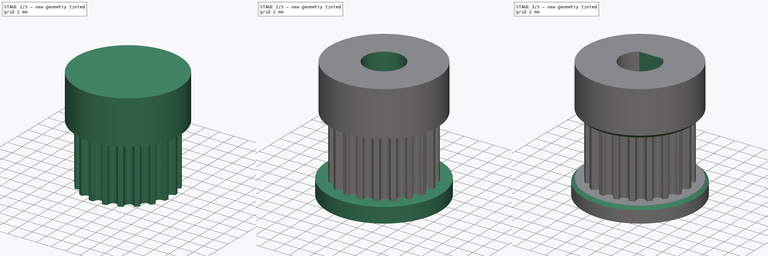
[diagram: build sequence overview — one tinted view per stage of 3, left to right]
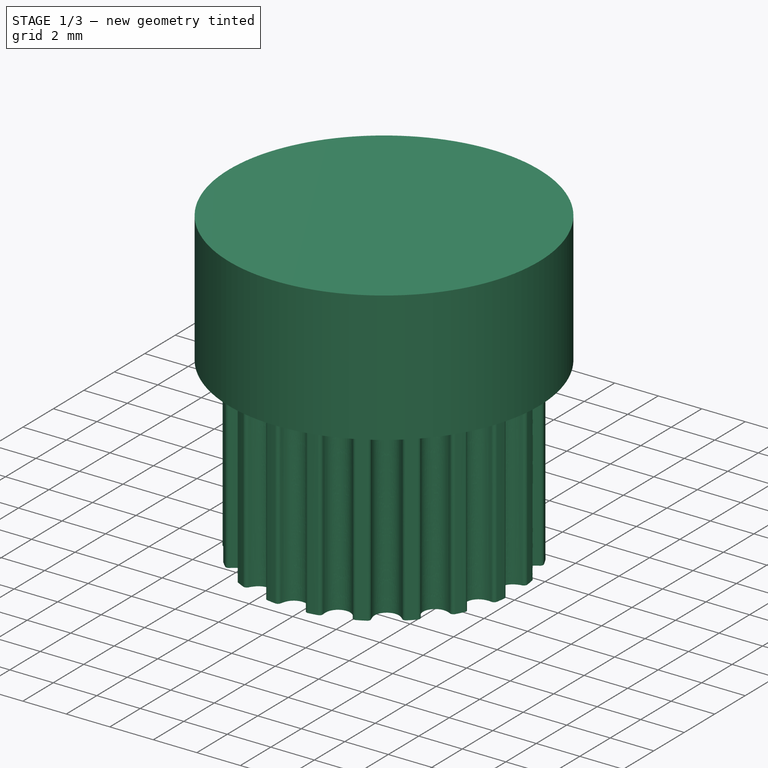
[diagram: stage 1 of 3 — iso view after this stage's code; geometry added in this stage tinted green]
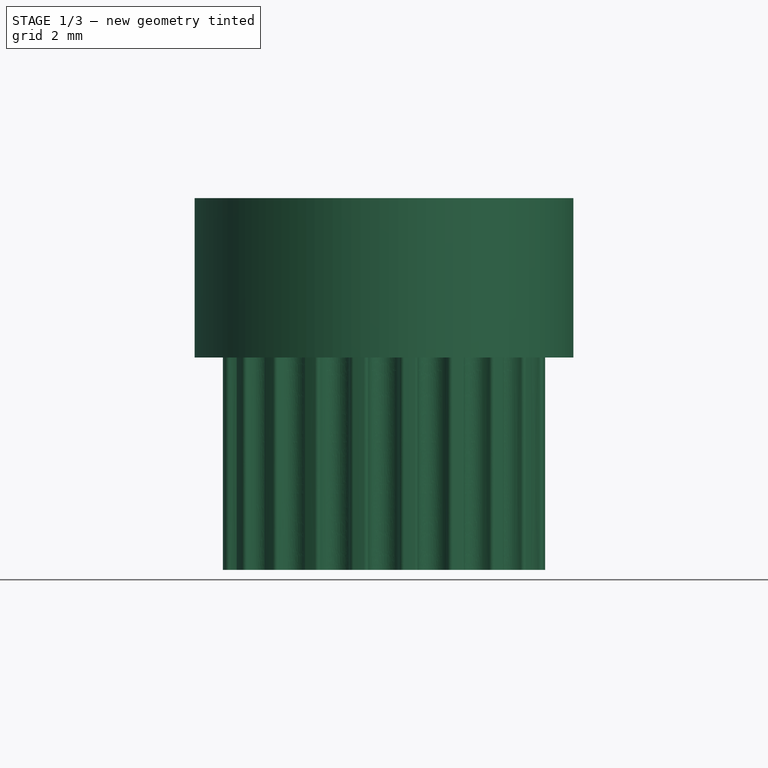
[diagram: stage 1 of 3 — front view after this stage's code; geometry added in this stage tinted green]
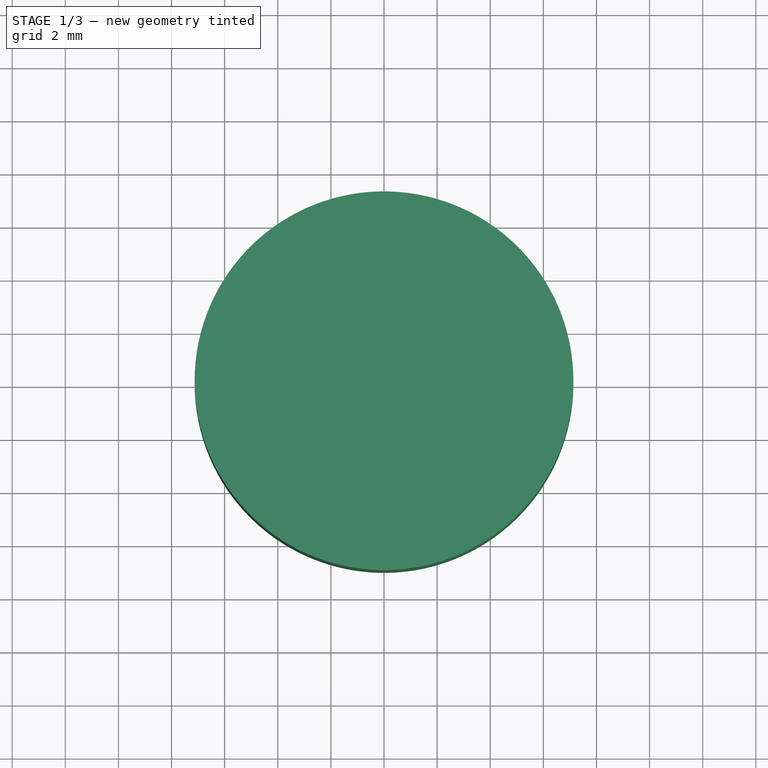
[diagram: stage 1 of 3 — top view after this stage's code; geometry added in this stage tinted green]
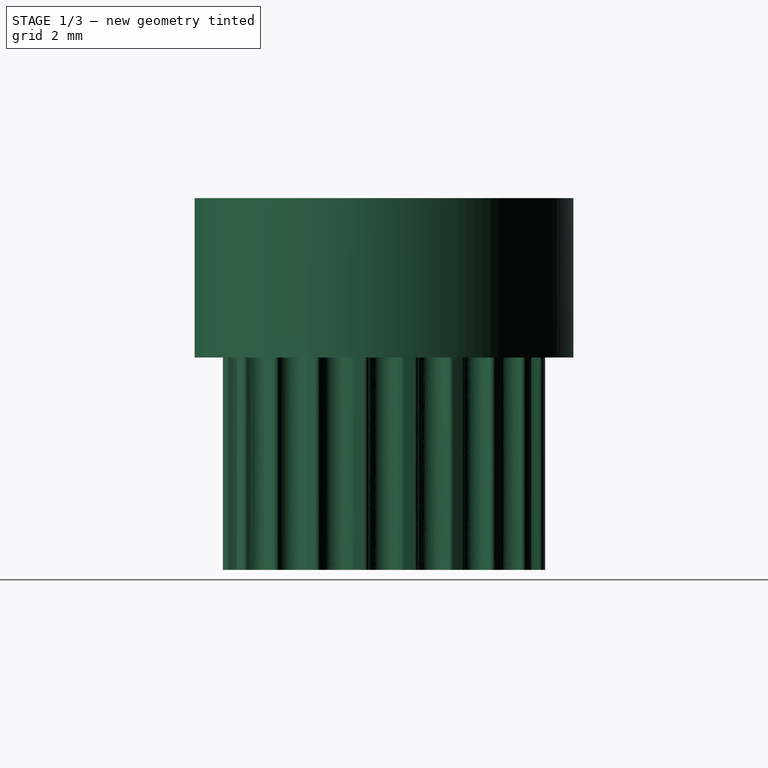
[diagram: stage 1 of 3 — right view after this stage's code; geometry added in this stage tinted green]
FCSTD DOCUMENT  (FreeCAD 0.19R24291 (Git))
Label: gt2_gear
License: All rights reserved
LicenseURL: http://en.wikipedia.org/wiki/All_rights_reserved
objects: Sketcher::SketchObject×5, PartDesign::Plane×4, PartDesign::Pad×3, Part::FeaturePython×1, PartDesign::FeatureBase×1, PartDesign::Pocket×1, PartDesign::Hole×1, PartDesign::Chamfer×1, PartDesign::Body×1
note: 24 computed .brp shape members not serialized (recipe doc carries the construction recipe); baked Part::Feature solids carry a one-line shape summary decoded from their .brp

FEATURE [Part::FeaturePython] TimingGear  # WARN: FeaturePython — macro-defined, semantics opaque (R4)
  AttacherType = Attacher::AttachEngine3D
  h = 0.75
  height = 8
  offset = 0.4
  pitch = 2
  r0 = 0.555
  r1 = 1
  rs = 0.15
  teeth = 20
  type = 0
  u = 0.254
  version = 0.0.4
FEATURE [PartDesign::FeatureBase] BaseFeature
  BaseFeature = -> TimingGear
FEATURE [PartDesign::Plane] DatumPlane
  Length = 60
  MapMode = 5
  Placement = pos=(0,0,8) rot=(0,0,1;0rad)
  ResizeMode = 0
  Support = -> [BaseFeature]
  Width = 60
FEATURE [Sketcher::SketchObject] Sketch
  FullyConstrained = false
  MapMode = 5
  Placement = pos=(0,0,8) rot=(0,0,1;0rad)
  Support = -> [DatumPlane]
  sketch-geometry (1):
    g0: Circle CenterX=0 CenterY=0 CenterZ=0 NormalX=0 NormalY=0 NormalZ=1 AngleXU=0 Radius=7.13171
FEATURE [PartDesign::Pad] Pad
  BaseFeature = -> BaseFeature
  Direction = (1,1,1)
  Length = 6
  Length2 = 100
  Profile = -> Sketch
  Refine = true
  Type = 0
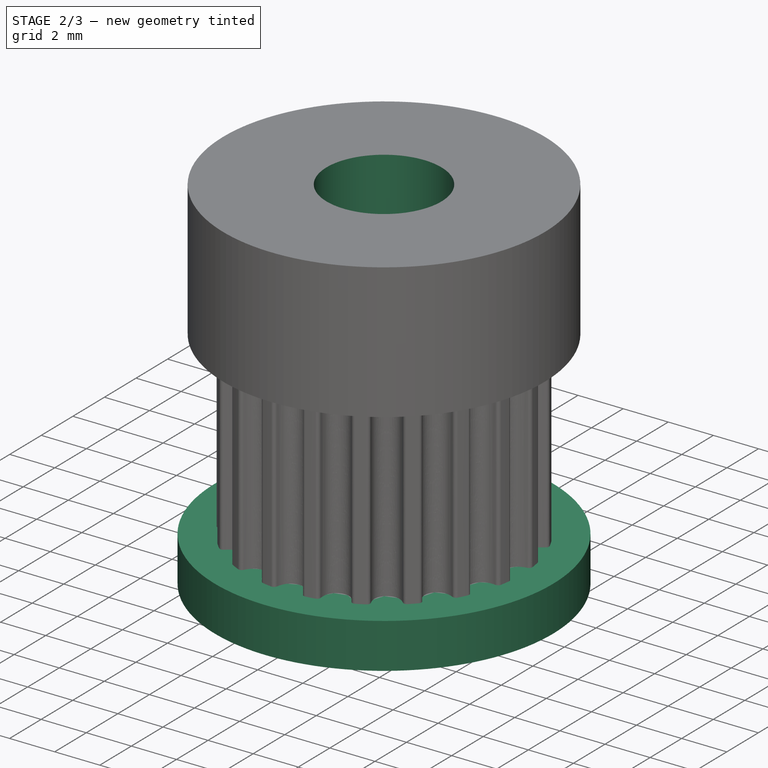
[diagram: stage 2 of 3 — iso view after this stage's code; geometry added in this stage tinted green]
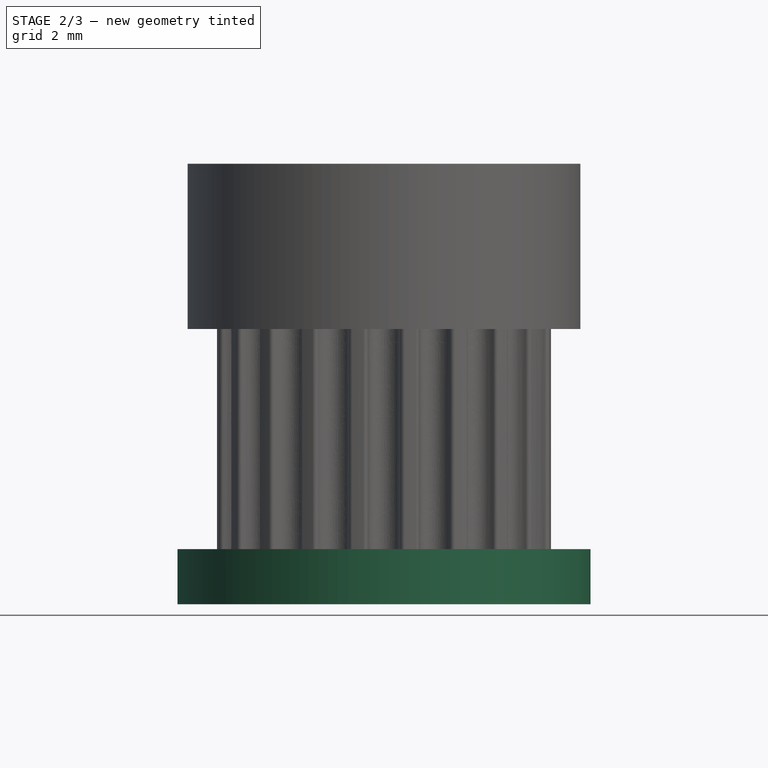
[diagram: stage 2 of 3 — front view after this stage's code; geometry added in this stage tinted green]
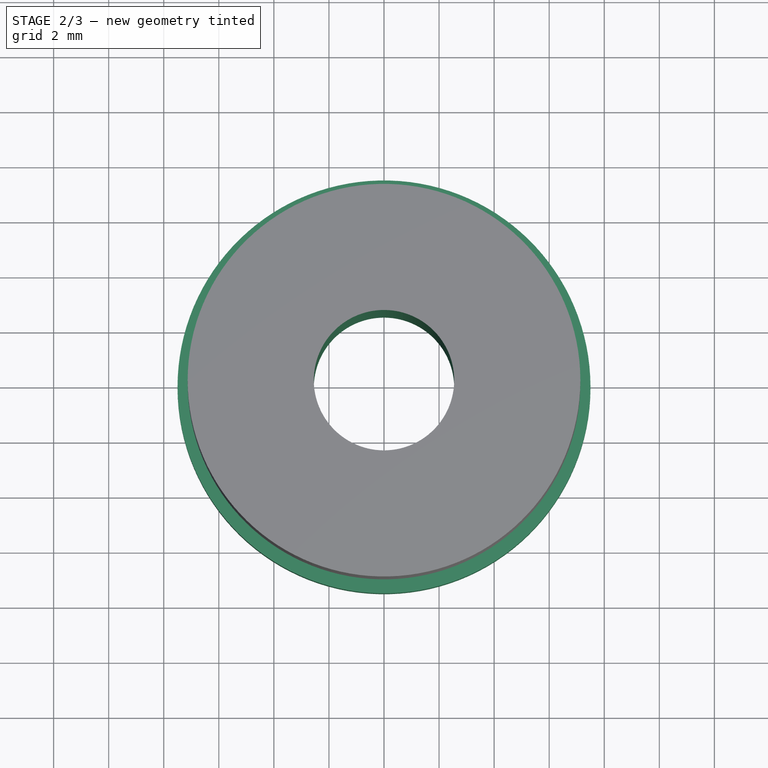
[diagram: stage 2 of 3 — top view after this stage's code; geometry added in this stage tinted green]
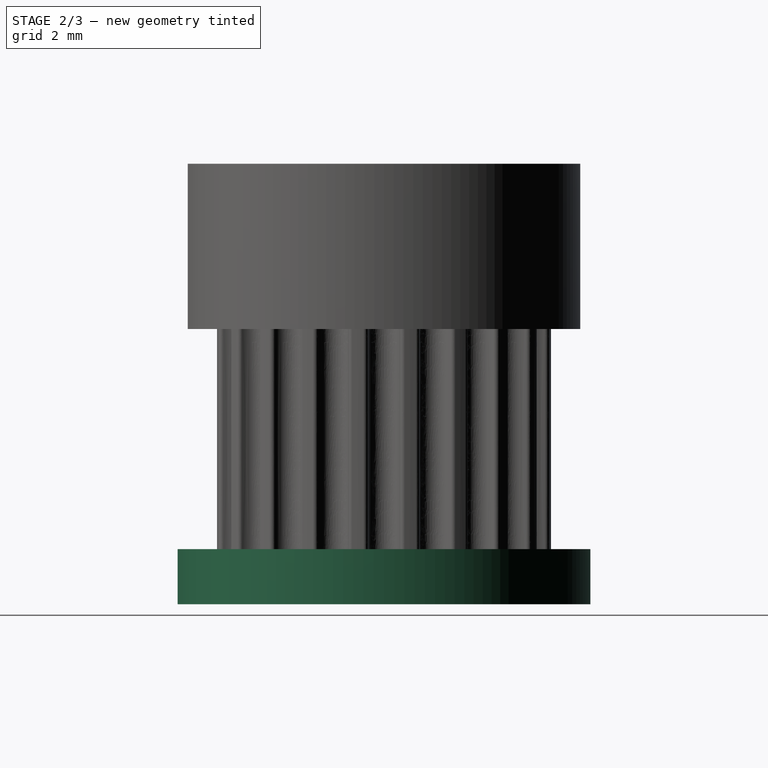
[diagram: stage 2 of 3 — right view after this stage's code; geometry added in this stage tinted green]
FEATURE [PartDesign::Plane] DatumPlane001
  Length = 60
  MapMode = 5
  Placement = pos=(0,0,0) rot=(1,0,0;3.14159rad)
  ResizeMode = 0
  Support = -> [Pad]
  Width = 60
FEATURE [Sketcher::SketchObject] Sketch001
  FullyConstrained = true
  MapMode = 5
  Placement = pos=(0,0,0) rot=(1,0,0;3.14159rad)
  Support = -> [DatumPlane001]
  sketch-geometry (1):
    g0: Circle CenterX=0 CenterY=0 CenterZ=0 NormalX=0 NormalY=0 NormalZ=1 AngleXU=0 Radius=7.5
  constraints (2):
    c: Coincident(g0,g-1)
    c: Diameter(g0) = 15
FEATURE [PartDesign::Pad] Pad001
  BaseFeature = -> Pad
  Direction = (1,1,1)
  Length = 2
  Length2 = 100
  Profile = -> Sketch001
  Refine = true
  Type = 0
FEATURE [Sketcher::SketchObject] Sketch002
  FullyConstrained = true
  MapMode = 5
  Placement = pos=(0,0,8) rot=(0,0,1;0rad)
  Support = -> [DatumPlane]
  sketch-geometry (1):
    g0: Circle CenterX=0 CenterY=0 CenterZ=0 NormalX=0 NormalY=0 NormalZ=1 AngleXU=0 Radius=2.55
  constraints (2):
    c: Coincident(g0,g-1)
    c: Diameter(g0) = 5.1
FEATURE [PartDesign::Pocket] Pocket
  BaseFeature = -> Pad001
  Length = 11
  Length2 = 100
  Profile = -> Sketch002
  Refine = true
  Type = 4
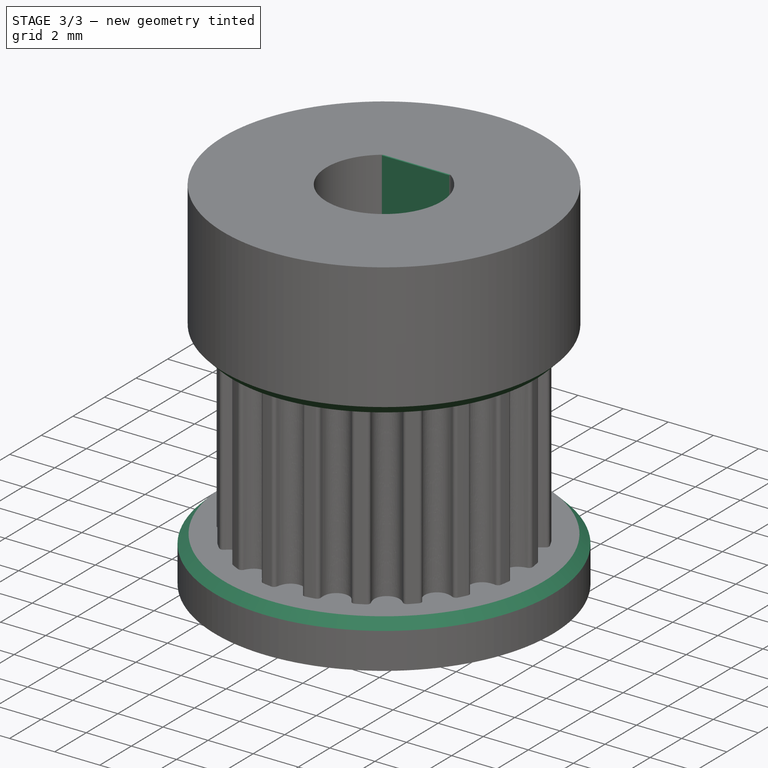
[diagram: stage 3 of 3 — iso view after this stage's code; geometry added in this stage tinted green]
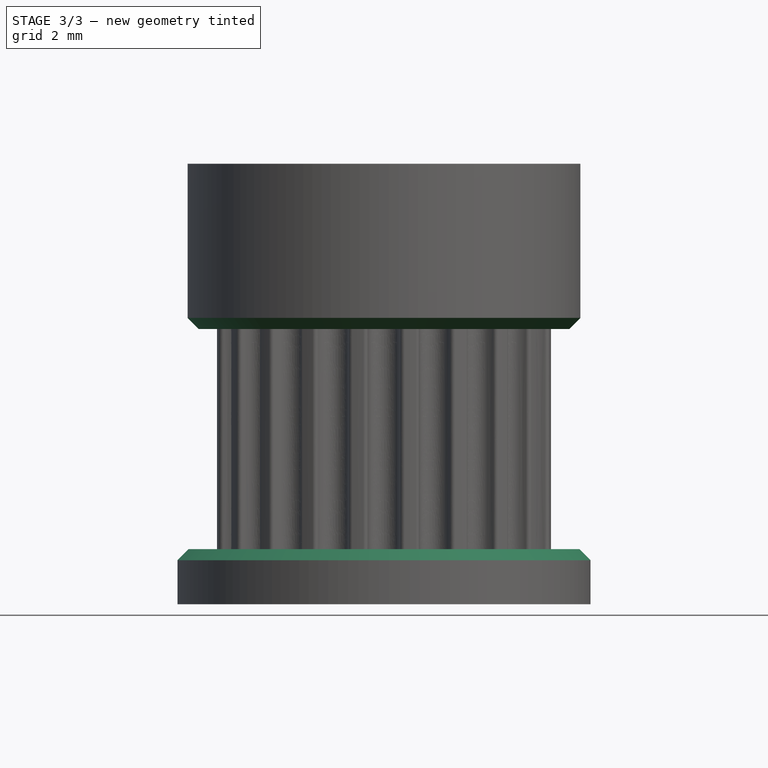
[diagram: stage 3 of 3 — front view after this stage's code; geometry added in this stage tinted green]
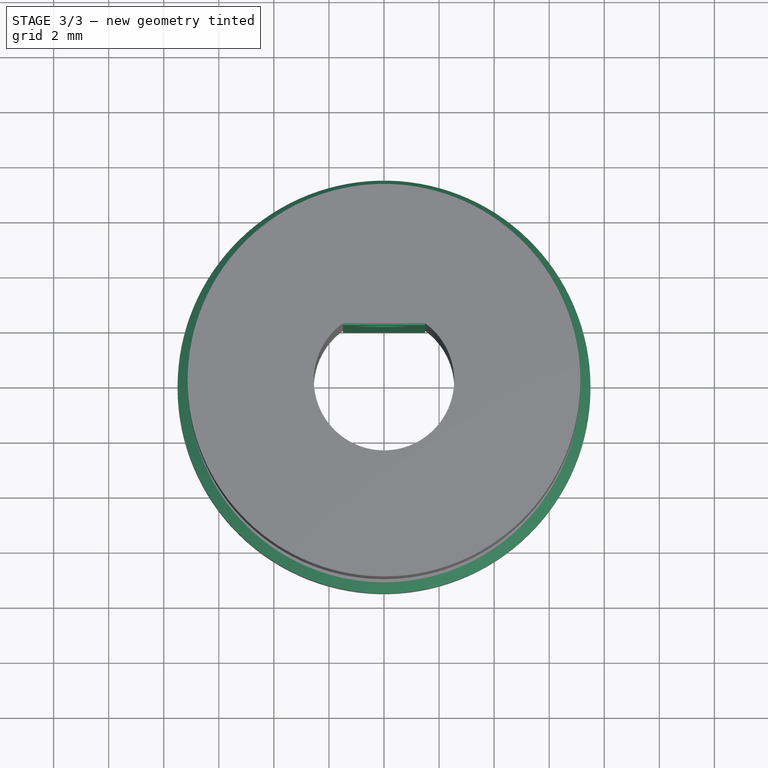
[diagram: stage 3 of 3 — top view after this stage's code; geometry added in this stage tinted green]
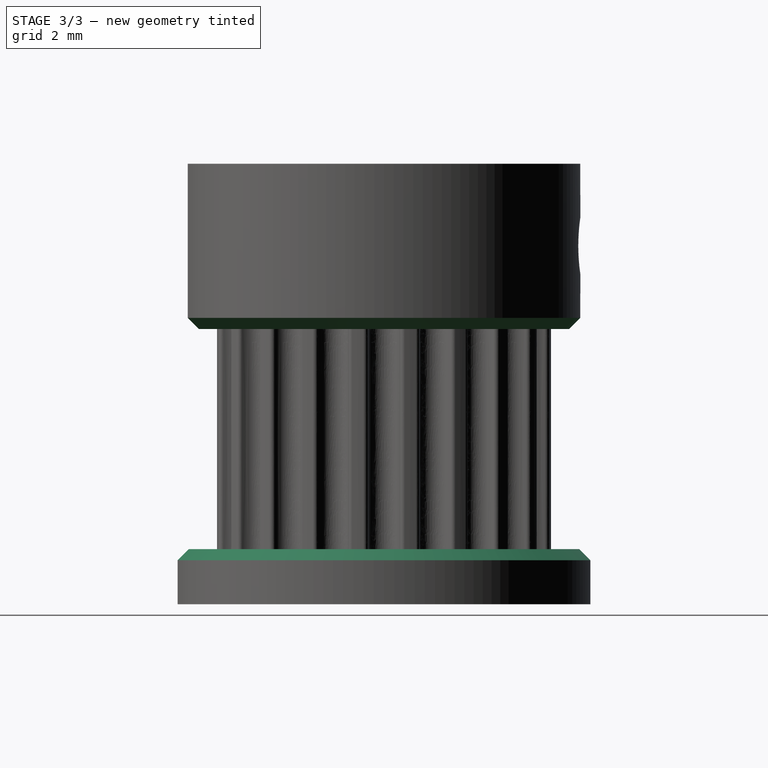
[diagram: stage 3 of 3 — right view after this stage's code; geometry added in this stage tinted green]
FEATURE [PartDesign::Plane] DatumPlane002
  Length = 60
  MapMode = 5
  Placement = pos=(0,0,-2) rot=(1,0,0;3.14159rad)
  ResizeMode = 0
  Support = -> [Pocket]
  Width = 60
FEATURE [Sketcher::SketchObject] Sketch003
  FullyConstrained = false
  MapMode = 5
  Placement = pos=(0,0,-2) rot=(1,0,0;3.14159rad)
  Support = -> [DatumPlane002]
  sketch-geometry (4):
    g0: LineSegment StartX=-1.49334 StartY=-2 StartZ=0 EndX=1.49334 EndY=-2 EndZ=0
    g1: LineSegment StartX=1.49334 StartY=-2 StartZ=0 EndX=1.49334 EndY=-2.56167 EndZ=0
    g2: LineSegment StartX=1.49334 StartY=-2.56167 StartZ=0 EndX=-1.49334 EndY=-2.56167 EndZ=0
    g3: LineSegment StartX=-1.49334 StartY=-2.56167 StartZ=0 EndX=-1.49334 EndY=-2 EndZ=0
  constraints (9):
    c: Coincident(g0,g1)
    c: Coincident(g1,g2)
    c: Coincident(g2,g3)
    c: Coincident(g3,g0)
    c: Horizontal(g2)
    c: Vertical(g1)
    c: Vertical(g3)
    c: Symmetric(g0,g0,g-2)
    c: DistanceY(g0,g-1) = 2
FEATURE [PartDesign::Pad] Pad002
  BaseFeature = -> Pocket
  Direction = (1,1,1)
  Length = 16
  Length2 = 100
  Profile = -> Sketch003
  Refine = true
  Reversed = true
  Type = 0
FEATURE [PartDesign::Plane] DatumPlane003
  Length = 60
  MapMode = 5
  Placement = pos=(0,2,0) rot=(1,0,0;1.5708rad)
  ResizeMode = 0
  Support = -> [Pad002]
  Width = 60
FEATURE [Sketcher::SketchObject] Sketch004
  FullyConstrained = false
  MapMode = 5
  Placement = pos=(0,2,0) rot=(1,0,0;1.5708rad)
  Support = -> [DatumPlane003]
  sketch-geometry (1):
    g0: Circle CenterX=0 CenterY=11.0212 CenterZ=0 NormalX=0 NormalY=0 NormalZ=1 AngleXU=0 Radius=1.19901
  constraints (1):
    c: PointOnObject(g0,g-2)
FEATURE [PartDesign::Hole] Hole
  BaseFeature = -> Pad002
  Depth = 25
  DepthType = 0
  Diameter = 2.05
  DrillForDepth = false
  DrillPoint = 1
  DrillPointAngle = 118
  HoleCutCountersinkAngle = 90
  HoleCutCustomValues = false
  HoleCutDepth = 3
  HoleCutDiameter = 6.1
  HoleCutType = 0
  ModelActualThread = false
  Profile = -> Sketch004
  Refine = true
  Tapered = false
  TaperedAngle = 90
  ThreadAngle = 60
  ThreadClass = 0
  ThreadCutOffInner = 0.0487139
  ThreadCutOffOuter = 0.0974279
  ThreadDirection = 0
  ThreadFit = 0
  ThreadPitch = 0.45
  ThreadSize = 8
  ThreadType = 1
  Threaded = true
FEATURE [PartDesign::Chamfer] Chamfer
  Angle = 45
  Base = -> Hole [Edge2,Edge379]
  BaseFeature = -> Hole
  ChamferType = 0
  FlipDirection = false
  Refine = true
  Size = 0.4
  Size2 = 1
  SupportTransform = false
FEATURE [PartDesign::Body] Body  label="gt2_20Tooth"
  BaseFeature = -> TimingGear
  Group = -> [BaseFeature,DatumPlane,Sketch,Pad,DatumPlane001,Sketch001,Pad001,Sketch002,Pocket,DatumPlane002,Sketch003,Pad002,DatumPlane003,Sketch004,Hole,Chamfer]
  Origin = -> Origin
  Tip = -> Chamfer
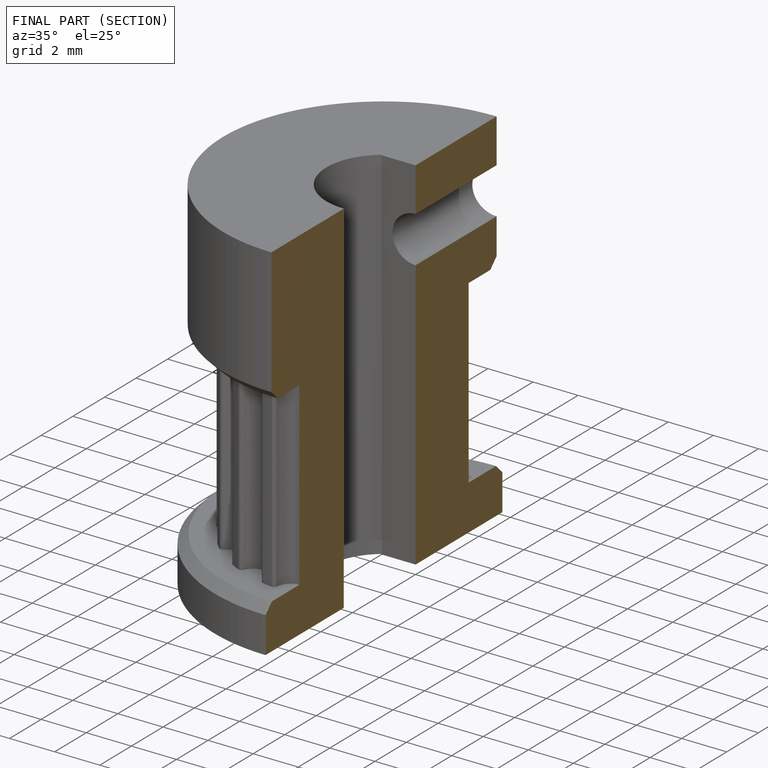
[diagram: finished part — half-section view (interior)]
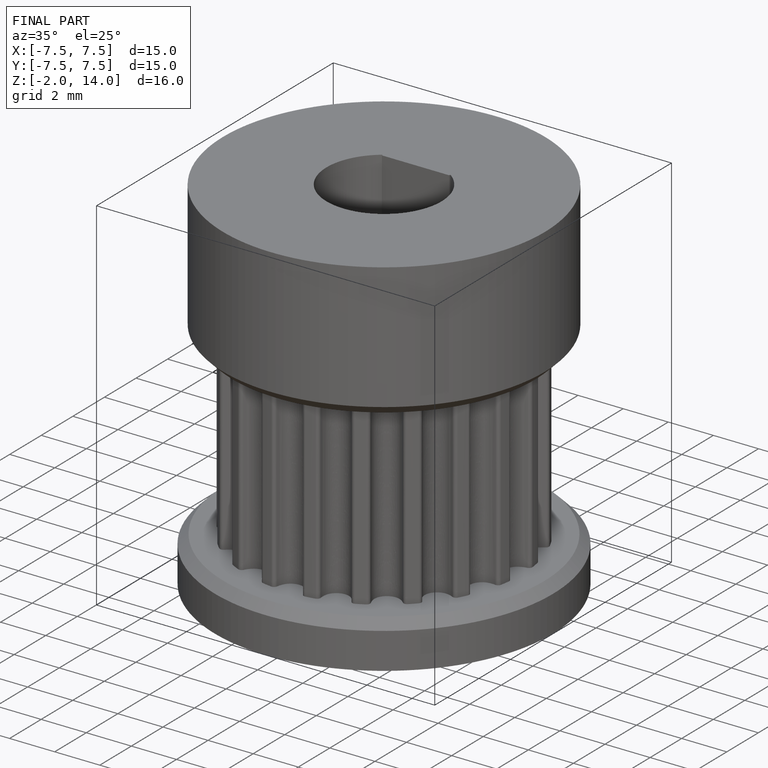
[diagram: finished part — iso view with bounding-box wireframe]
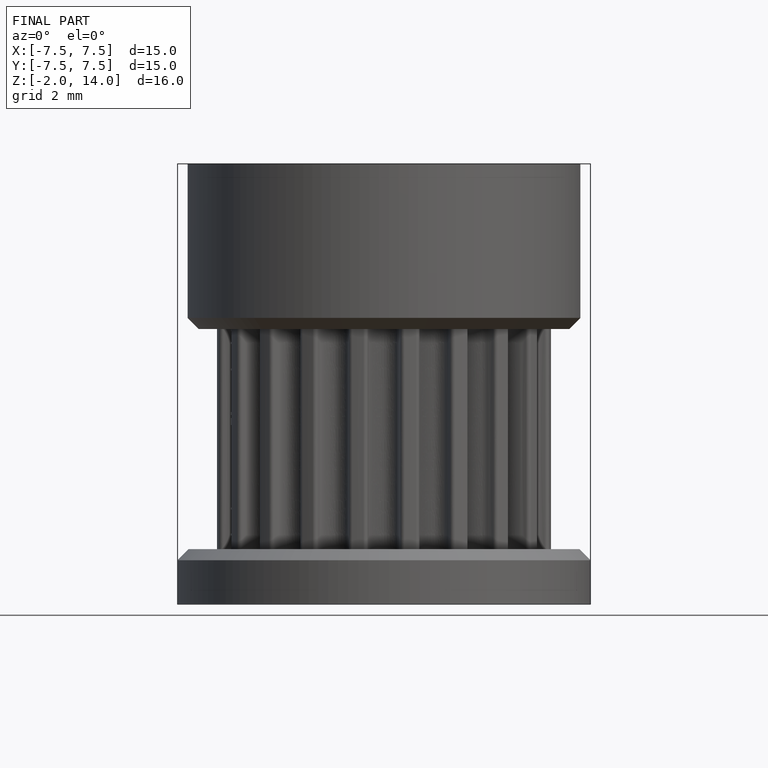
[diagram: finished part — front view with bounding-box wireframe]
